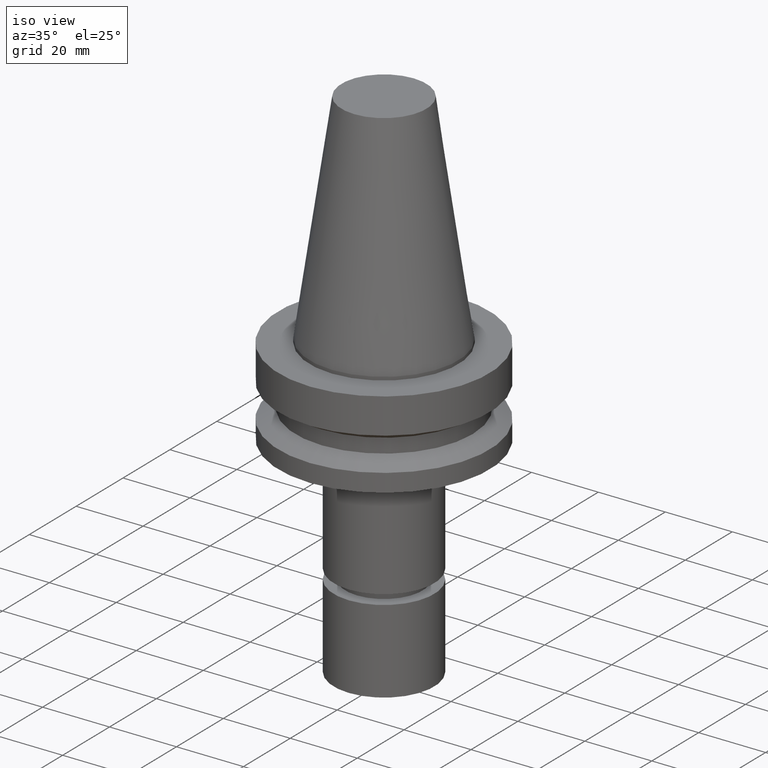
[diagram: clean part render]
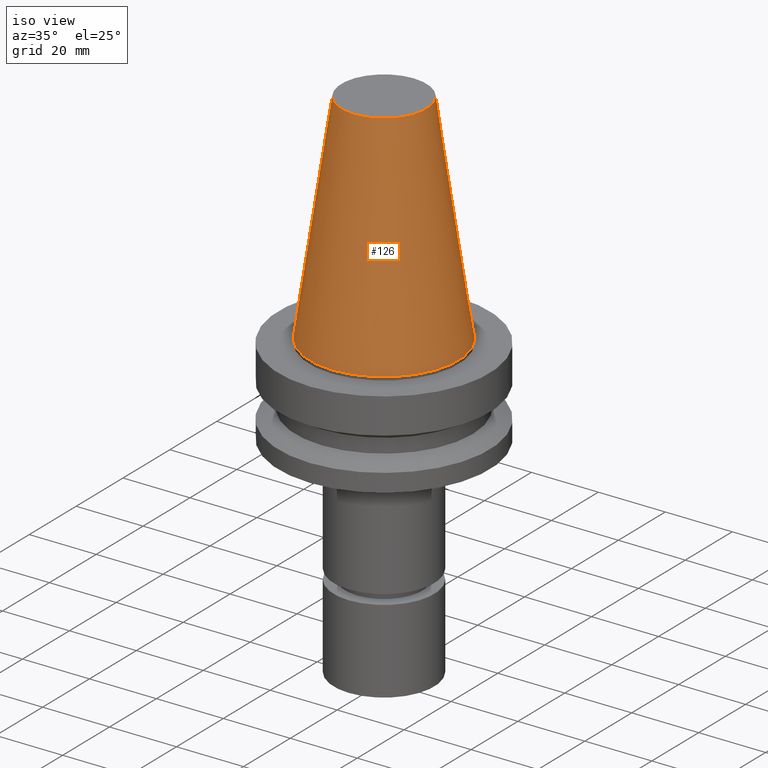
[diagram: same view with one face highlighted and labeled with its STEP entity id]
A machine part, iso view. The second image highlights one B-rep face of the part: STEP entity #126.
In plain terms, the highlighted conical surface has half-angle 8.297 deg.
Its self-contained STEP definition (entity closure, byte-faithful):
#126=ADVANCED_FACE('Unnamed[1]',(#279,#280),#281,.T.);
#165=EDGE_CURVE('Unnamed[1]',#338,#338,#339,.T.);
#177=EDGE_CURVE('Unnamed[1]',#357,#357,#358,.T.);
#279=FACE_BOUND('',#474,.T.);
#280=FACE_BOUND('',#475,.T.);
#281=CONICAL_SURFACE('',#476,17.45625,0.144812498238936);
#338=VERTEX_POINT('',#547);
#339=CIRCLE('',#548,12.6875000000001);
#357=VERTEX_POINT('',#571);
#358=CIRCLE('',#572,22.225);
#474=EDGE_LOOP('',(#665));
#475=EDGE_LOOP('',(#666));
#476=AXIS2_PLACEMENT_3D('',#667,#668,#669);
#547=CARTESIAN_POINT('',(-4.00459503321185E-015,12.6875000000002,65.4000000000001));
#548=AXIS2_PLACEMENT_3D('',#731,#732,#733);
#571=CARTESIAN_POINT('',(1.71319921032766E-029,22.2250000000001,-2.8153873565375E-013));
#572=AXIS2_PLACEMENT_3D('',#752,#753,#754);
#665=ORIENTED_EDGE('',*,*,#177,.F.);
#666=ORIENTED_EDGE('',*,*,#165,.T.);
#667=CARTESIAN_POINT('',(-2.00229751660592E-015,7.55758047197501E-014,32.6999999999999));
#668=DIRECTION('',(6.12323399573677E-017,-4.7256395665028E-017,-1.0));
#669=DIRECTION('',(-1.93353304624816E-033,1.0,-4.7256395665028E-017));
#731=CARTESIAN_POINT('',(-4.00459503321185E-015,7.71210888579965E-014,65.4000000000001));
#732=DIRECTION('',(6.12323399573677E-017,-4.7256395665028E-017,-1.0));
#733=DIRECTION('',(-1.93353304624816E-033,1.0,-4.72563956650279E-017));
#752=CARTESIAN_POINT('',(1.74032777401202E-029,7.40305205815037E-014,-2.8421709430404E-013));
#753=DIRECTION('',(6.12323399573677E-017,-4.72563956650279E-017,-1.0));
#754=DIRECTION('',(-1.93353304624816E-033,1.0,-4.72563956650279E-017));